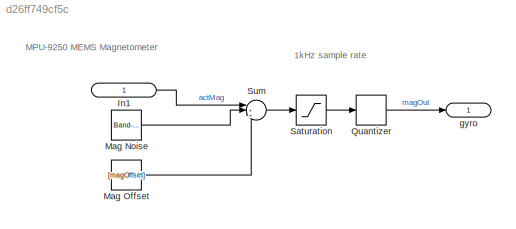
MODEL slx_d26ff749cf5c
KIND model
CONFIG AbsTol = auto
CONFIG FixedStep = auto
CONFIG MaxStep = auto
CONFIG MinStep = auto
CONFIG RelTol = 1e-3
CONFIG SampleTimeConstraint = Unconstrained
CONFIG Solver = ode45
CONFIG SolverMode = Auto
CONFIG SolverName = ode45
CONFIG StartTime = 0.0
CONFIG StopTime = 10
BLOCK [Inport] In1
  IconDisplay = Signal name
  SignalType = real
BLOCK [Reference] Mag Noise  REF=simulink/Sources/Band-Limited
White Noise
  Cov = [magNoise]
  Ports = [0, 1]
  SourceBlock = simulink/Sources/Band-Limited\nWhite Noise
  SourceType = Band-Limited White Noise.
  Ts = 1/1000
  VectorParams1D = on
  seed = [10]
BLOCK [Constant] Mag Offset
  Value = [magOffset]
BLOCK [Quantizer] Quantizer
  QuantizationInterval = magSensitivity
BLOCK [Saturate] Saturation
  InputPortMap = u0
  LowerLimit = -magMax
  Ports = [1, 1]
  UpperLimit = magMax
BLOCK [Sum] Sum
  IconShape = round
  InputSameDT = off
  Inputs = |+++
  OutDataTypeStr = Inherit: Inherit via internal rule
  Ports = [3, 1]
  SaturateOnIntegerOverflow = off
BLOCK [Outport] gyro
  IconDisplay = Signal name
  OutDataTypeStr = double
  PortDimensions = 1
  SignalType = real
  VarSizeSig = No
ANNOTATION (root): 1kHz sample rate
ANNOTATION (root): MPU-9250 MEMS Magnetometer
LINE In1:1 -> Sum:1
LINE Mag Noise:1 -> Sum:2
LINE Mag Offset:1 -> Sum:3
LINE Quantizer:1 -> gyro:1
LINE Saturation:1 -> Quantizer:1
LINE Sum:1 -> Saturation:1
